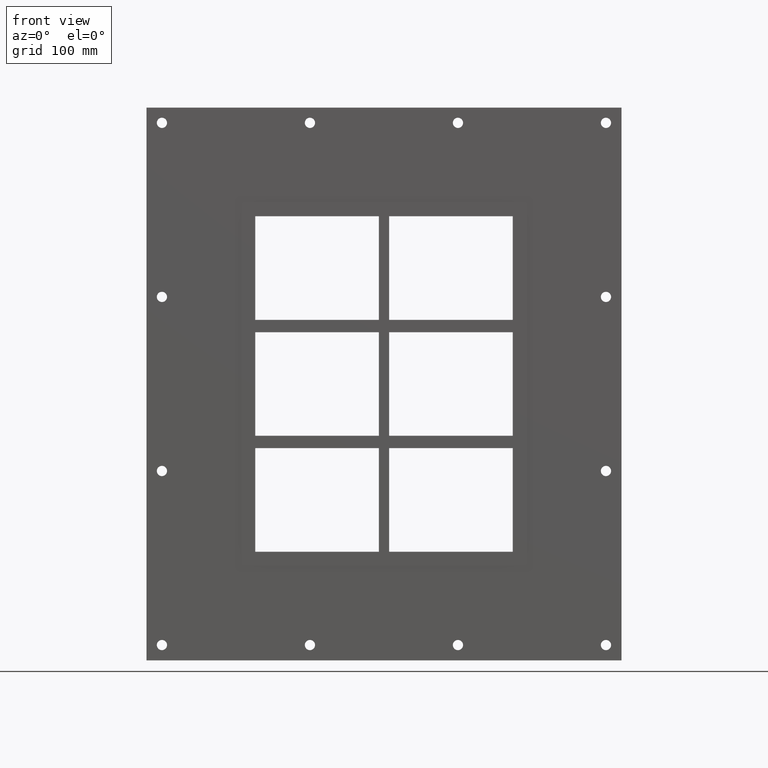
[diagram: clean part render]
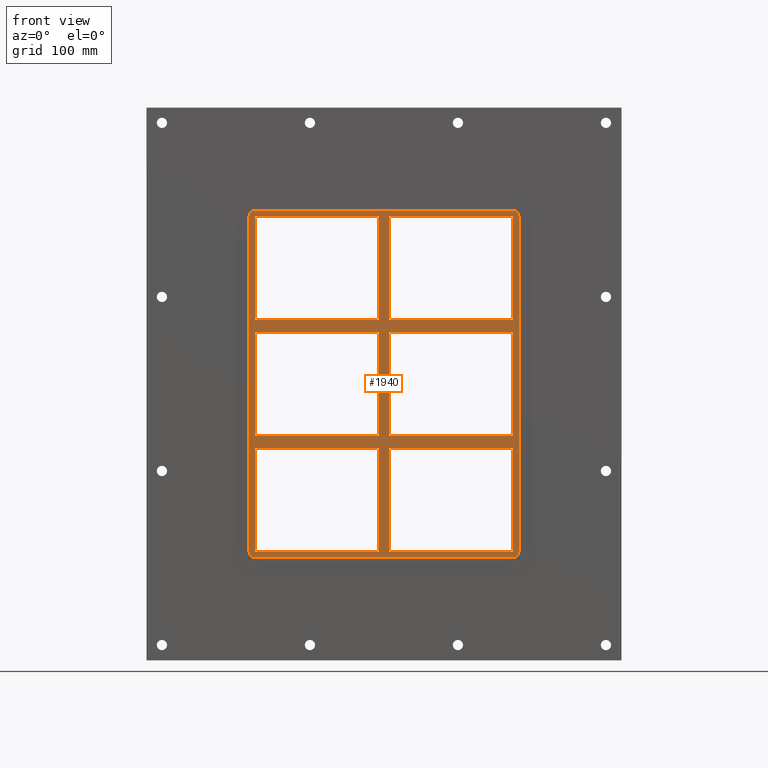
[diagram: same view with one face highlighted and labeled with its STEP entity id]
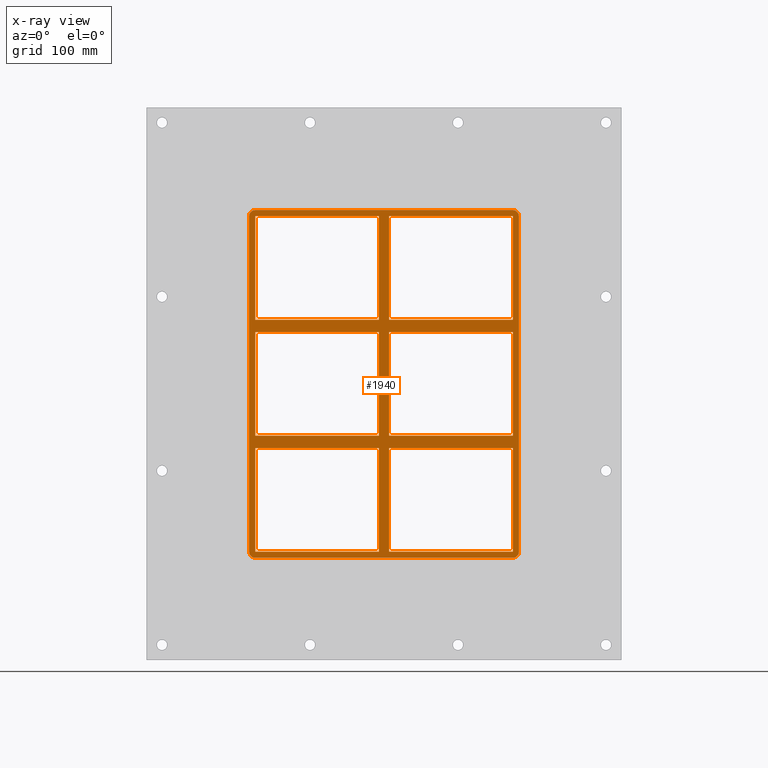
[diagram: x-ray of the same camera — body ghosted, the highlighted face saturated]
A machine part, front view. The second image highlights one B-rep face of the part: STEP entity #1940.
The next image is the same camera in x-ray: the body ghosted, the highlighted face saturated — about 0% of this face is hidden behind the body in this view.
In plain terms, the highlighted planar face has unit normal (0, 1, 0).
Its self-contained STEP definition (entity closure, byte-faithful):
#411=CARTESIAN_POINT('',(5.0,-3.0,50.499999999990663));
#412=VERTEX_POINT('',#411);
#427=CARTESIAN_POINT('',(125.50000000000182,-3.0,50.499999999990699));
#428=VERTEX_POINT('',#427);
#435=CARTESIAN_POINT('',(125.50000000000182,-3.0,50.499999999990699));
#436=DIRECTION('',(-1.0,0.0,0.0));
#437=VECTOR('',#436,120.50000000000182);
#438=LINE('',#435,#437);
#439=EDGE_CURVE('',#428,#412,#438,.T.);
#449=CARTESIAN_POINT('',(5.0,-3.0,62.499999999999893));
#450=VERTEX_POINT('',#449);
#459=CARTESIAN_POINT('',(125.49999999999989,-3.0,62.499999999999893));
#460=VERTEX_POINT('',#459);
#461=CARTESIAN_POINT('',(5.000000000000014,-3.0,62.499999999999893));
#462=DIRECTION('',(1.0,0.0,0.0));
#463=VECTOR('',#462,120.49999999999989);
#464=LINE('',#461,#463);
#465=EDGE_CURVE('',#450,#460,#464,.T.);
#491=CARTESIAN_POINT('',(-5.00000000000135,-3.0,62.499999999999893));
#492=VERTEX_POINT('',#491);
#507=CARTESIAN_POINT('',(-125.4999999999997,-3.0,62.499999999999893));
#508=VERTEX_POINT('',#507);
#515=CARTESIAN_POINT('',(-125.4999999999997,-3.0,62.499999999999893));
#516=DIRECTION('',(1.0,0.0,0.0));
#517=VECTOR('',#516,120.49999999999835);
#518=LINE('',#515,#517);
#519=EDGE_CURVE('',#508,#492,#518,.T.);
#529=CARTESIAN_POINT('',(-5.00000000000135,-3.0,50.499999999990663));
#530=VERTEX_POINT('',#529);
#539=CARTESIAN_POINT('',(-125.4999999999997,-3.0,50.499999999990628));
#540=VERTEX_POINT('',#539);
#541=CARTESIAN_POINT('',(-5.000000000001364,-3.0,50.499999999990663));
#542=DIRECTION('',(-1.0,0.0,0.0));
#543=VECTOR('',#542,120.49999999999832);
#544=LINE('',#541,#543);
#545=EDGE_CURVE('',#530,#540,#544,.T.);
#570=CARTESIAN_POINT('',(-125.4999999999997,-3.0,-50.500000000000114));
#571=VERTEX_POINT('',#570);
#572=CARTESIAN_POINT('',(-125.5,-3.0,-50.500000000000107));
#573=DIRECTION('',(0.0,0.0,1.0));
#574=VECTOR('',#573,100.99999999999073);
#575=LINE('',#572,#574);
#576=EDGE_CURVE('',#571,#540,#575,.T.);
#609=CARTESIAN_POINT('',(125.49999999999989,-3.0,-50.500000000000114));
#610=VERTEX_POINT('',#609);
#617=CARTESIAN_POINT('',(125.49999999999997,-3.0,50.499999999990699));
#618=DIRECTION('',(0.0,0.0,-1.0));
#619=VECTOR('',#618,100.99999999999082);
#620=LINE('',#617,#619);
#621=EDGE_CURVE('',#428,#610,#620,.T.);
#632=CARTESIAN_POINT('',(125.49999999999997,-3.0,163.50000000000006));
#633=VERTEX_POINT('',#632);
#634=CARTESIAN_POINT('',(125.49999999999997,-3.0,163.50000000000006));
#635=DIRECTION('',(0.0,0.0,-1.0));
#636=VECTOR('',#635,101.00000000000017);
#637=LINE('',#634,#636);
#638=EDGE_CURVE('',#633,#460,#637,.T.);
#663=CARTESIAN_POINT('',(-5.000000000001368,-3.0,163.50000000000006));
#664=VERTEX_POINT('',#663);
#665=CARTESIAN_POINT('',(-5.000000000001351,-3.0,62.499999999999886));
#666=DIRECTION('',(0.0,0.0,1.0));
#667=VECTOR('',#666,101.00000000000017);
#668=LINE('',#665,#667);
#669=EDGE_CURVE('',#492,#664,#668,.T.);
#702=CARTESIAN_POINT('',(-5.000000000001332,-3.0,-50.500000000000114));
#703=VERTEX_POINT('',#702);
#710=CARTESIAN_POINT('',(-5.000000000001333,-3.0,-50.500000000000114));
#711=DIRECTION('',(0.0,0.0,1.0));
#712=VECTOR('',#711,100.99999999999076);
#713=LINE('',#710,#712);
#714=EDGE_CURVE('',#703,#530,#713,.T.);
#733=CARTESIAN_POINT('',(5.0,-3.0,163.50000000000006));
#734=VERTEX_POINT('',#733);
#741=CARTESIAN_POINT('',(5.0,-3.0,163.50000000000006));
#742=DIRECTION('',(0.0,0.0,-1.0));
#743=VECTOR('',#742,101.00000000000016);
#744=LINE('',#741,#743);
#745=EDGE_CURVE('',#734,#450,#744,.T.);
#757=CARTESIAN_POINT('',(5.0,-3.0,-62.500000000009344));
#758=VERTEX_POINT('',#757);
#773=CARTESIAN_POINT('',(125.50000000000182,-3.0,-62.500000000009308));
#774=VERTEX_POINT('',#773);
#781=CARTESIAN_POINT('',(125.50000000000182,-3.0,-62.500000000009308));
#782=DIRECTION('',(-1.0,0.0,0.0));
#783=VECTOR('',#782,120.50000000000182);
#784=LINE('',#781,#783);
#785=EDGE_CURVE('',#774,#758,#784,.T.);
#795=CARTESIAN_POINT('',(-5.000000000001332,-3.0,-62.500000000009344));
#796=VERTEX_POINT('',#795);
#805=CARTESIAN_POINT('',(-125.4999999999997,-3.0,-62.500000000009379));
#806=VERTEX_POINT('',#805);
#807=CARTESIAN_POINT('',(-5.000000000001336,-3.0,-62.500000000009344));
#808=DIRECTION('',(-1.0,0.0,0.0));
#809=VECTOR('',#808,120.49999999999835);
#810=LINE('',#807,#809);
#811=EDGE_CURVE('',#796,#806,#810,.T.);
#835=CARTESIAN_POINT('',(5.0,-3.0,-50.500000000000114));
#836=VERTEX_POINT('',#835);
#845=CARTESIAN_POINT('',(5.000000000000014,-3.0,-50.500000000000114));
#846=DIRECTION('',(1.0,0.0,0.0));
#847=VECTOR('',#846,120.49999999999989);
#848=LINE('',#845,#847);
#849=EDGE_CURVE('',#836,#610,#848,.T.);
#874=CARTESIAN_POINT('',(-125.4999999999997,-3.0,-50.500000000000114));
#875=DIRECTION('',(1.0,0.0,0.0));
#876=VECTOR('',#875,120.49999999999838);
#877=LINE('',#874,#876);
#878=EDGE_CURVE('',#571,#703,#877,.T.);
#897=CARTESIAN_POINT('',(-125.5,-3.0,163.50000000000006));
#898=VERTEX_POINT('',#897);
#905=CARTESIAN_POINT('',(-125.5,-3.0,62.499999999999886));
#906=DIRECTION('',(0.0,0.0,1.0));
#907=VECTOR('',#906,101.00000000000017);
#908=LINE('',#905,#907);
#909=EDGE_CURVE('',#508,#898,#908,.T.);
#928=CARTESIAN_POINT('',(125.49999999999997,-3.0,-163.50000000000006));
#929=VERTEX_POINT('',#928);
#936=CARTESIAN_POINT('',(125.49999999999997,-3.0,-62.500000000009308));
#937=DIRECTION('',(0.0,0.0,-1.0));
#938=VECTOR('',#937,100.99999999999075);
#939=LINE('',#936,#938);
#940=EDGE_CURVE('',#774,#929,#939,.T.);
#1109=CARTESIAN_POINT('',(5.0,-3.0,50.499999999990678));
#1110=DIRECTION('',(0.0,0.0,-1.0));
#1111=VECTOR('',#1110,100.99999999999079);
#1112=LINE('',#1109,#1111);
#1113=EDGE_CURVE('',#412,#836,#1112,.T.);
#1127=CARTESIAN_POINT('',(-5.000000000001315,-3.0,-163.50000000000006));
#1128=VERTEX_POINT('',#1127);
#1135=CARTESIAN_POINT('',(-5.000000000001315,-3.0,-163.50000000000006));
#1136=DIRECTION('',(0.0,0.0,1.0));
#1137=VECTOR('',#1136,100.99999999999071);
#1138=LINE('',#1135,#1137);
#1139=EDGE_CURVE('',#1128,#796,#1138,.T.);
#1150=CARTESIAN_POINT('',(5.0,-3.0,-163.49999999998428));
#1151=VERTEX_POINT('',#1150);
#1152=CARTESIAN_POINT('',(5.0,-3.0,-62.500000000009322));
#1153=DIRECTION('',(0.0,0.0,-1.0));
#1154=VECTOR('',#1153,100.99999999997493);
#1155=LINE('',#1152,#1154);
#1156=EDGE_CURVE('',#758,#1151,#1155,.T.);
#1175=CARTESIAN_POINT('',(-125.5,-3.0,-163.50000000000006));
#1176=VERTEX_POINT('',#1175);
#1183=CARTESIAN_POINT('',(-5.000000000001315,-3.0,-163.50000000000006));
#1184=DIRECTION('',(-1.0,0.0,0.0));
#1185=VECTOR('',#1184,120.49999999999872);
#1186=LINE('',#1183,#1185);
#1187=EDGE_CURVE('',#1128,#1176,#1186,.T.);
#1198=CARTESIAN_POINT('',(125.49999999999997,-3.0,-163.50000000000006));
#1199=DIRECTION('',(-1.0,0.0,0.0));
#1200=VECTOR('',#1199,120.49999999999997);
#1201=LINE('',#1198,#1200);
#1202=EDGE_CURVE('',#929,#1151,#1201,.T.);
#1217=CARTESIAN_POINT('',(5.0,-3.0,163.50000000000006));
#1218=DIRECTION('',(1.0,0.0,0.0));
#1219=VECTOR('',#1218,120.49999999999999);
#1220=LINE('',#1217,#1219);
#1221=EDGE_CURVE('',#734,#633,#1220,.T.);
#1232=CARTESIAN_POINT('',(-125.5,-3.0,163.50000000000006));
#1233=DIRECTION('',(1.0,0.0,0.0));
#1234=VECTOR('',#1233,120.49999999999864);
#1235=LINE('',#1232,#1234);
#1236=EDGE_CURVE('',#898,#664,#1235,.T.);
#1609=CARTESIAN_POINT('',(-125.5,-3.0,-163.50000000000006));
#1610=DIRECTION('',(0.0,0.0,1.0));
#1611=VECTOR('',#1610,100.99999999999068);
#1612=LINE('',#1609,#1611);
#1613=EDGE_CURVE('',#1176,#806,#1612,.T.);
#1626=CARTESIAN_POINT('',(125.5,-3.0,169.50000000000006));
#1627=VERTEX_POINT('',#1626);
#1634=CARTESIAN_POINT('',(131.5,-3.0,163.50000000000006));
#1635=VERTEX_POINT('',#1634);
#1636=CARTESIAN_POINT('',(125.5,-3.0,163.50000000000006));
#1637=DIRECTION('',(0.0,1.0,0.0));
#1638=DIRECTION('',(0.707106781186545,0.0,0.70710678118655));
#1639=AXIS2_PLACEMENT_3D('',#1636,#1637,#1638);
#1640=CIRCLE('',#1639,6.000000000000001);
#1641=EDGE_CURVE('',#1627,#1635,#1640,.T.);
#1681=CARTESIAN_POINT('',(131.5,-3.0,-163.49999999999997));
#1682=VERTEX_POINT('',#1681);
#1683=CARTESIAN_POINT('',(131.5,-3.0,-163.5));
#1684=DIRECTION('',(0.0,0.0,1.0));
#1685=VECTOR('',#1684,327.00000000000006);
#1686=LINE('',#1683,#1685);
#1687=EDGE_CURVE('',#1682,#1635,#1686,.T.);
#1721=CARTESIAN_POINT('',(-125.5,-3.0,169.50000000000006));
#1722=VERTEX_POINT('',#1721);
#1729=CARTESIAN_POINT('',(125.49999999999997,-3.0,169.50000000000006));
#1730=DIRECTION('',(-1.0,0.0,0.0));
#1731=VECTOR('',#1730,251.0);
#1732=LINE('',#1729,#1731);
#1733=EDGE_CURVE('',#1627,#1722,#1732,.T.);
#1746=CARTESIAN_POINT('',(125.49999999999997,-3.0,-169.5));
#1747=VERTEX_POINT('',#1746);
#1748=CARTESIAN_POINT('',(125.49999999999997,-3.0,-163.49999999999997));
#1749=DIRECTION('',(0.0,1.0,0.0));
#1750=DIRECTION('',(0.707106781186548,0.0,-0.707106781186548));
#1751=AXIS2_PLACEMENT_3D('',#1748,#1749,#1750);
#1752=CIRCLE('',#1751,6.000000000000002);
#1753=EDGE_CURVE('',#1682,#1747,#1752,.T.);
#1787=CARTESIAN_POINT('',(-131.50000000000003,-3.0,163.50000000000006));
#1788=VERTEX_POINT('',#1787);
#1795=CARTESIAN_POINT('',(-125.5,-3.0,163.50000000000006));
#1796=DIRECTION('',(0.0,1.0,0.0));
#1797=DIRECTION('',(-0.707106781186548,0.0,0.707106781186548));
#1798=AXIS2_PLACEMENT_3D('',#1795,#1796,#1797);
#1799=CIRCLE('',#1798,6.000000000000002);
#1800=EDGE_CURVE('',#1788,#1722,#1799,.T.);
#1813=CARTESIAN_POINT('',(-125.50000000000004,-3.0,-169.5));
#1814=VERTEX_POINT('',#1813);
#1815=CARTESIAN_POINT('',(-125.5,-3.0,-169.5));
#1816=DIRECTION('',(1.0,0.0,0.0));
#1817=VECTOR('',#1816,251.0);
#1818=LINE('',#1815,#1817);
#1819=EDGE_CURVE('',#1814,#1747,#1818,.T.);
#1853=CARTESIAN_POINT('',(-131.50000000000003,-3.0,-163.49999999999997));
#1854=VERTEX_POINT('',#1853);
#1861=CARTESIAN_POINT('',(-131.50000000000003,-3.0,163.50000000000006));
#1862=DIRECTION('',(0.0,0.0,-1.0));
#1863=VECTOR('',#1862,327.00000000000006);
#1864=LINE('',#1861,#1863);
#1865=EDGE_CURVE('',#1788,#1854,#1864,.T.);
#1878=CARTESIAN_POINT('',(-125.50000000000004,-3.0,-163.49999999999997));
#1879=DIRECTION('',(0.0,1.0,0.0));
#1880=DIRECTION('',(-0.707106781186545,0.0,-0.70710678118655));
#1881=AXIS2_PLACEMENT_3D('',#1878,#1879,#1880);
#1882=CIRCLE('',#1881,6.000000000000001);
#1883=EDGE_CURVE('',#1814,#1854,#1882,.T.);
#1889=CARTESIAN_POINT('',(-2.512571E-014,-3.0,2.832729E-014));
#1890=DIRECTION('',(0.0,1.0,0.0));
#1891=DIRECTION('',(0.0,0.0,1.0));
#1892=AXIS2_PLACEMENT_3D('',#1889,#1890,#1891);
#1893=PLANE('',#1892);
#1894=ORIENTED_EDGE('',*,*,#1753,.F.);
#1895=ORIENTED_EDGE('',*,*,#1687,.T.);
#1896=ORIENTED_EDGE('',*,*,#1641,.F.);
#1897=ORIENTED_EDGE('',*,*,#1733,.T.);
#1898=ORIENTED_EDGE('',*,*,#1800,.F.);
#1899=ORIENTED_EDGE('',*,*,#1865,.T.);
#1900=ORIENTED_EDGE('',*,*,#1883,.F.);
#1901=ORIENTED_EDGE('',*,*,#1819,.T.);
#1902=EDGE_LOOP('',(#1894,#1895,#1896,#1897,#1898,#1899,#1900,#1901));
#1903=FACE_OUTER_BOUND('',#1902,.T.);
#1904=ORIENTED_EDGE('',*,*,#909,.T.);
#1905=ORIENTED_EDGE('',*,*,#1236,.T.);
#1906=ORIENTED_EDGE('',*,*,#669,.F.);
#1907=ORIENTED_EDGE('',*,*,#519,.F.);
#1908=EDGE_LOOP('',(#1904,#1905,#1906,#1907));
#1909=FACE_BOUND('',#1908,.T.);
#1910=ORIENTED_EDGE('',*,*,#621,.T.);
#1911=ORIENTED_EDGE('',*,*,#849,.F.);
#1912=ORIENTED_EDGE('',*,*,#1113,.F.);
#1913=ORIENTED_EDGE('',*,*,#439,.F.);
#1914=EDGE_LOOP('',(#1910,#1911,#1912,#1913));
#1915=FACE_BOUND('',#1914,.T.);
#1916=ORIENTED_EDGE('',*,*,#545,.F.);
#1917=ORIENTED_EDGE('',*,*,#714,.F.);
#1918=ORIENTED_EDGE('',*,*,#878,.F.);
#1919=ORIENTED_EDGE('',*,*,#576,.T.);
#1920=EDGE_LOOP('',(#1916,#1917,#1918,#1919));
#1921=FACE_BOUND('',#1920,.T.);
#1922=ORIENTED_EDGE('',*,*,#465,.F.);
#1923=ORIENTED_EDGE('',*,*,#745,.F.);
#1924=ORIENTED_EDGE('',*,*,#1221,.T.);
#1925=ORIENTED_EDGE('',*,*,#638,.T.);
#1926=EDGE_LOOP('',(#1922,#1923,#1924,#1925));
#1927=FACE_BOUND('',#1926,.T.);
#1928=ORIENTED_EDGE('',*,*,#940,.T.);
#1929=ORIENTED_EDGE('',*,*,#1202,.T.);
#1930=ORIENTED_EDGE('',*,*,#1156,.F.);
#1931=ORIENTED_EDGE('',*,*,#785,.F.);
#1932=EDGE_LOOP('',(#1928,#1929,#1930,#1931));
#1933=FACE_BOUND('',#1932,.T.);
#1934=ORIENTED_EDGE('',*,*,#811,.F.);
#1935=ORIENTED_EDGE('',*,*,#1139,.F.);
#1936=ORIENTED_EDGE('',*,*,#1187,.T.);
#1937=ORIENTED_EDGE('',*,*,#1613,.T.);
#1938=EDGE_LOOP('',(#1934,#1935,#1936,#1937));
#1939=FACE_BOUND('',#1938,.T.);
#1940=ADVANCED_FACE('',(#1903,#1909,#1915,#1921,#1927,#1933,#1939),#1893,.F.);